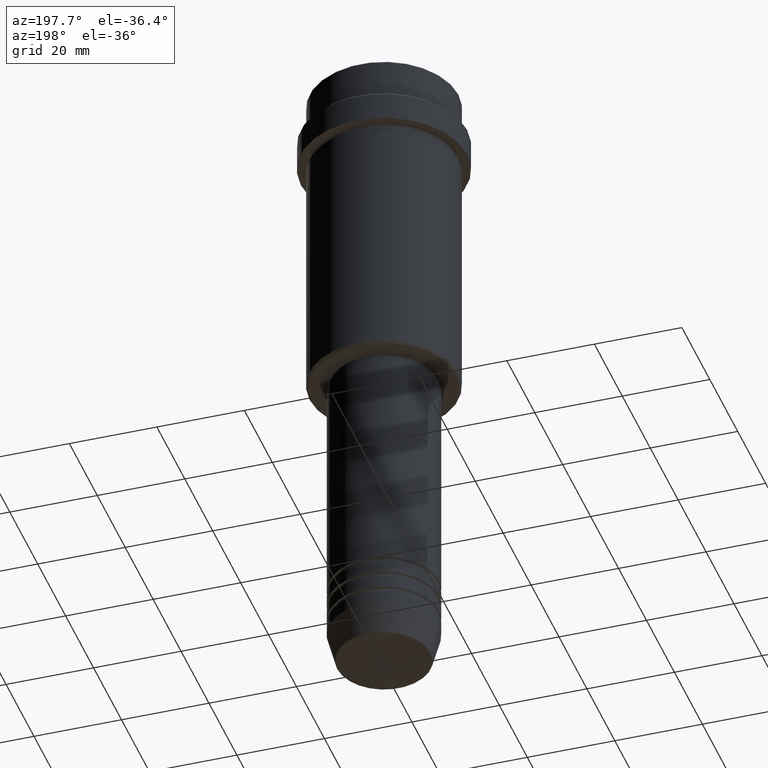
[diagram: clean part render]
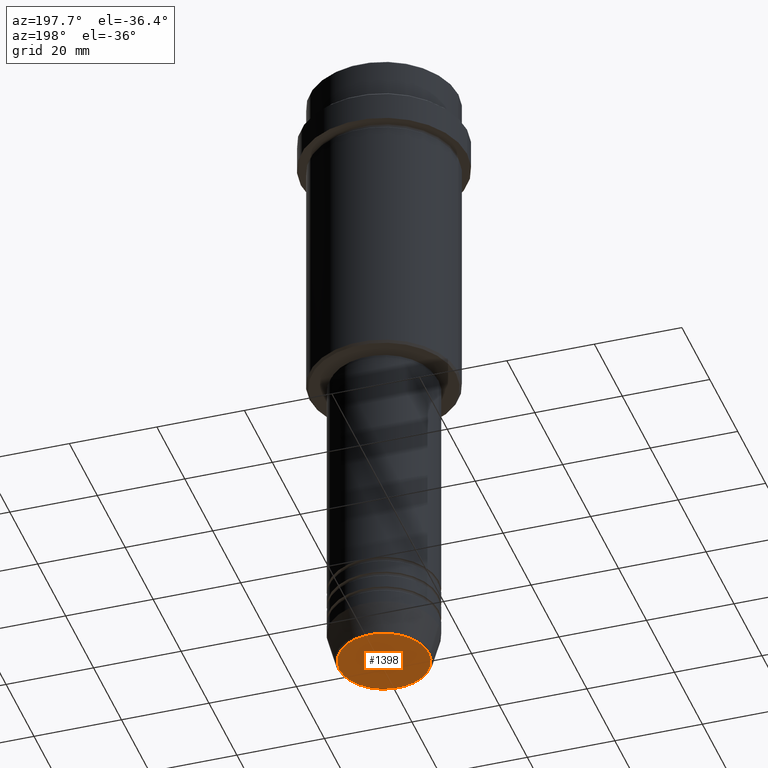
[diagram: same view with one face highlighted and labeled with its STEP entity id]
A machine part, auxiliary view. The second image highlights one B-rep face of the part: STEP entity #1398.
In plain terms, the highlighted planar face has unit normal (0, -0, 1).
Its self-contained STEP definition (entity closure, byte-faithful):
#102 = EDGE_LOOP ( 'NONE', ( #507, #682 ) ) ;
#183 = VERTEX_POINT ( 'NONE', #1078 ) ;
#196 = DIRECTION ( 'NONE',  ( 1.000000000000000000, 0.000000000000000000, 0.000000000000000000 ) ) ;
#270 = PLANE ( 'NONE',  #383 ) ;
#383 = AXIS2_PLACEMENT_3D ( 'NONE', #440, #1056, #508 ) ;
#386 = DIRECTION ( 'NONE',  ( 1.000000000000000000, 0.000000000000000000, 0.000000000000000000 ) ) ;
#440 = CARTESIAN_POINT ( 'NONE',  ( 0.000000000000000000, 0.000000000000000000, -150.0000000000000284 ) ) ;
#507 = ORIENTED_EDGE ( 'NONE', *, *, #1368, .T. ) ;
#508 = DIRECTION ( 'NONE',  ( 1.000000000000000000, 0.000000000000000000, 0.000000000000000000 ) ) ;
#567 = AXIS2_PLACEMENT_3D ( 'NONE', #761, #1200, #196 ) ;
#626 = CARTESIAN_POINT ( 'NONE',  ( -10.24069215899265828, 1.283696036640842178E-15, -150.0000000000000284 ) ) ;
#682 = ORIENTED_EDGE ( 'NONE', *, *, #1117, .T. ) ;
#761 = CARTESIAN_POINT ( 'NONE',  ( 0.000000000000000000, 0.000000000000000000, -150.0000000000000284 ) ) ;
#957 = CIRCLE ( 'NONE', #999, 10.24069215899265828 ) ;
#999 = AXIS2_PLACEMENT_3D ( 'NONE', #1084, #1370, #386 ) ;
#1056 = DIRECTION ( 'NONE',  ( 0.000000000000000000, -0.000000000000000000, 1.000000000000000000 ) ) ;
#1078 = CARTESIAN_POINT ( 'NONE',  ( 10.24069215899265828, 0.000000000000000000, -150.0000000000000284 ) ) ;
#1084 = CARTESIAN_POINT ( 'NONE',  ( 0.000000000000000000, 0.000000000000000000, -150.0000000000000284 ) ) ;
#1117 = EDGE_CURVE ( 'NONE', #1415, #183, #1181, .T. ) ;
#1181 = CIRCLE ( 'NONE', #567, 10.24069215899265828 ) ;
#1184 = FACE_OUTER_BOUND ( 'NONE', #102, .T. ) ;
#1200 = DIRECTION ( 'NONE',  ( 0.000000000000000000, 0.000000000000000000, -1.000000000000000000 ) ) ;
#1368 = EDGE_CURVE ( 'NONE', #183, #1415, #957, .T. ) ;
#1370 = DIRECTION ( 'NONE',  ( 0.000000000000000000, 0.000000000000000000, -1.000000000000000000 ) ) ;
#1398 = ADVANCED_FACE ( 'NONE', ( #1184 ), #270, .F. ) ;
#1415 = VERTEX_POINT ( 'NONE', #626 ) ;